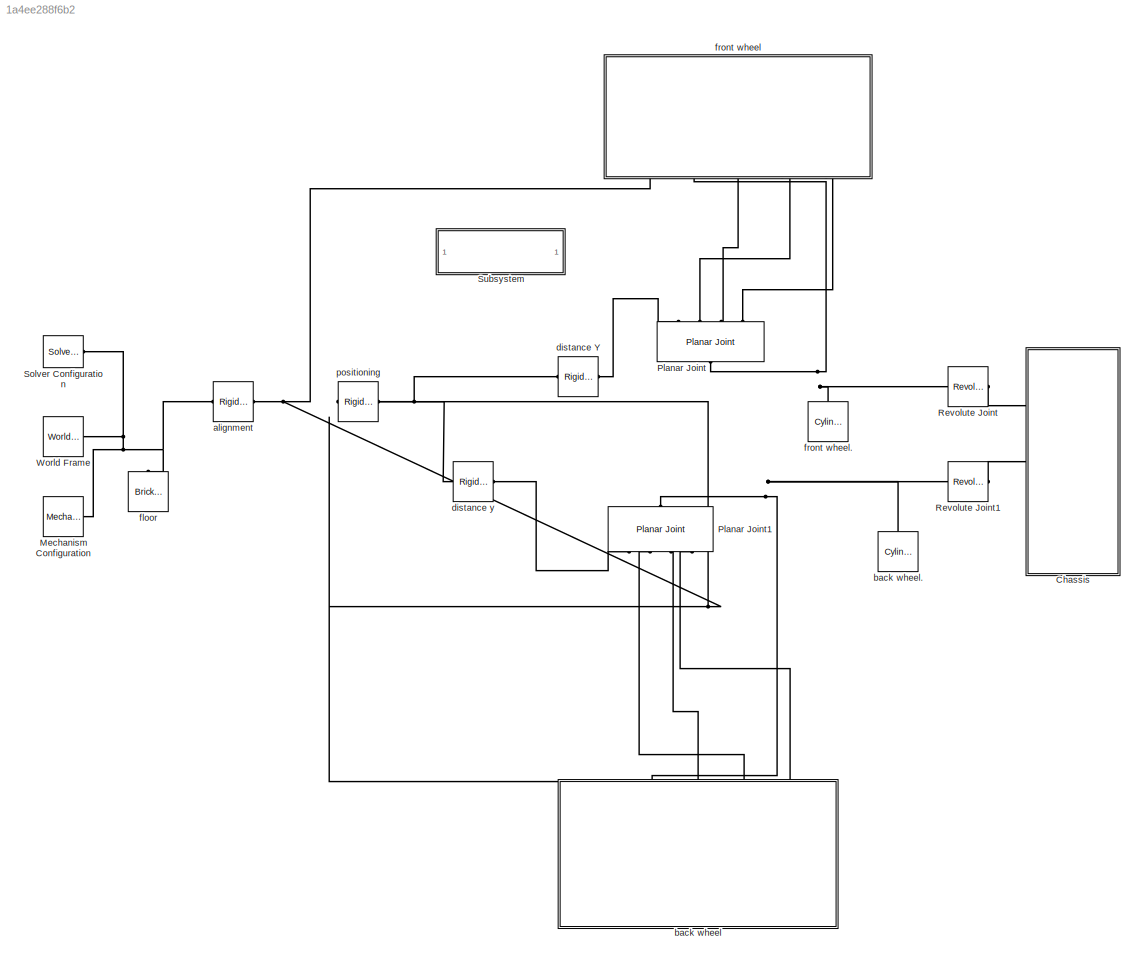
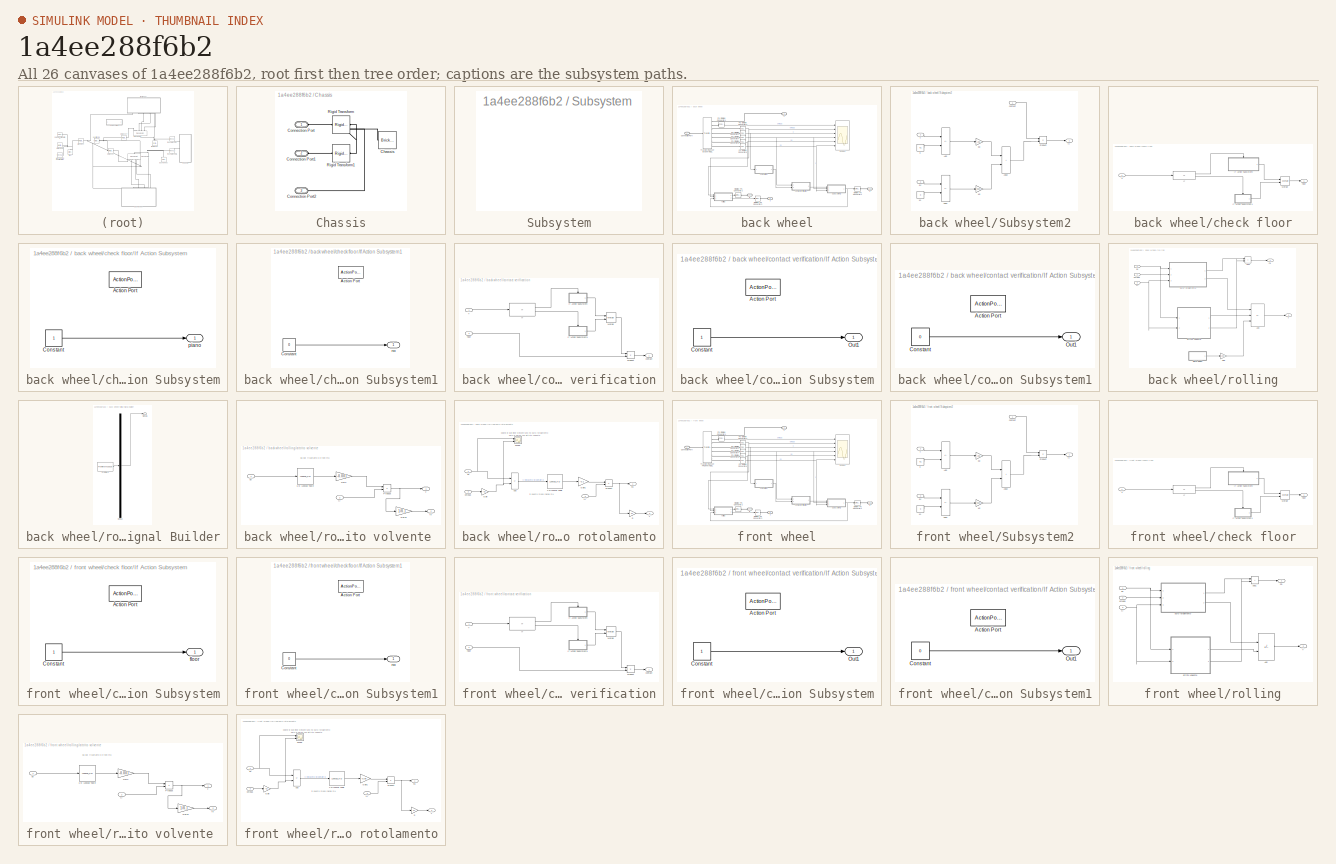
[diagram: thumbnail index - all 26 canvases of the model, root first then tree order]
MODEL slx_1a4ee288f6b2
KIND model
CONFIG AbsTol = auto
CONFIG EnableMultiTasking = on
CONFIG FixedStep = auto
CONFIG MaxStep = auto
CONFIG MinStep = auto
CONFIG RelTol = 1e-3
CONFIG SampleTimeConstraint = Unconstrained
CONFIG SolverName = VariableStepAuto
CONFIG StartTime = 0.0
CONFIG StopTime = 10.0
BLOCK [SubSystem] Chassis
  Ports = [0, 0, 0, 0, 0, 3]
  RequestExecContextInheritance = off
BLOCK [Reference] Chassis/Chassis  REF=sm_lib/Body Elements/Brick Solid
  NameLocation = top
  Ports = [0, 0, 0, 0, 0, 0, 1]
  SourceBlock = sm_lib/Body Elements/Brick Solid
  SourceProductBaseCode = MS
  SourceType = Brick Solid
BLOCK [PMIOPort] Chassis/Connection Port
  Side = Left
BLOCK [PMIOPort] Chassis/Connection Port1
  Port = 2
  Side = Left
BLOCK [PMIOPort] Chassis/Connection Port2
  Port = 3
  Side = Left
BLOCK [Reference] Chassis/Rigid Transform  REF=sm_lib/Frames and
Transforms/Rigid
Transform
  Ports = [0, 0, 0, 0, 0, 1, 1]
  SourceBlock = sm_lib/Frames and\nTransforms/Rigid\nTransform
  SourceProductBaseCode = MS
  SourceType = Rigid\nTransform
BLOCK [Reference] Chassis/Rigid Transform1  REF=sm_lib/Frames and
Transforms/Rigid
Transform
  Ports = [0, 0, 0, 0, 0, 1, 1]
  SourceBlock = sm_lib/Frames and\nTransforms/Rigid\nTransform
  SourceProductBaseCode = MS
  SourceType = Rigid\nTransform
BLOCK [Reference] Mechanism Configuration  REF=sm_lib/Utilities/Mechanism
Configuration
  Ports = [0, 0, 0, 0, 0, 0, 1]
  SourceBlock = sm_lib/Utilities/Mechanism\nConfiguration
  SourceProductBaseCode = MS
  SourceType = Mechanism\nConfiguration
BLOCK [Reference] Planar Joint  REF=sm_lib/Joints/Planar Joint
  NameLocation = left
  Ports = [0, 0, 0, 0, 0, 4, 1]
  SourceBlock = sm_lib/Joints/Planar Joint
  SourceProductBaseCode = MS
  SourceType = Planar Joint
BLOCK [Reference] Planar Joint1  REF=sm_lib/Joints/Planar Joint
  NameLocation = right
  Ports = [0, 0, 0, 0, 0, 4, 1]
  SourceBlock = sm_lib/Joints/Planar Joint
  SourceProductBaseCode = MS
  SourceType = Planar Joint
BLOCK [Reference] Revolute Joint  REF=sm_lib/Joints/Revolute Joint
  Ports = [0, 0, 0, 0, 0, 1, 1]
  SourceBlock = sm_lib/Joints/Revolute Joint
  SourceProductBaseCode = MS
  SourceType = Revolute Joint
BLOCK [Reference] Revolute Joint1  REF=sm_lib/Joints/Revolute Joint
  Ports = [0, 0, 0, 0, 0, 1, 1]
  SourceBlock = sm_lib/Joints/Revolute Joint
  SourceProductBaseCode = MS
  SourceType = Revolute Joint
BLOCK [Reference] Solver Configuration  REF=nesl_utility/Solver
Configuration
  Ports = [0, 0, 0, 0, 0, 0, 1]
  SourceBlock = nesl_utility/Solver\nConfiguration
  SourceProductBaseCode = SS
  SourceType = Solver\nConfiguration
BLOCK [SubSystem] Subsystem
  OpenFcn = open_system('sm_lib')
  Ports = []
  RequestExecContextInheritance = off
  ShowPortLabels = none
BLOCK [Reference] World Frame  REF=sm_lib/Frames and
Transforms/World Frame
  Ports = [0, 0, 0, 0, 0, 0, 1]
  SourceBlock = sm_lib/Frames and\nTransforms/World Frame
  SourceProductBaseCode = MS
  SourceType = World Frame
BLOCK [Reference] alignment  REF=sm_lib/Frames and
Transforms/Rigid
Transform
  Ports = [0, 0, 0, 0, 0, 1, 1]
  SourceBlock = sm_lib/Frames and\nTransforms/Rigid\nTransform
  SourceProductBaseCode = MS
  SourceType = Rigid\nTransform
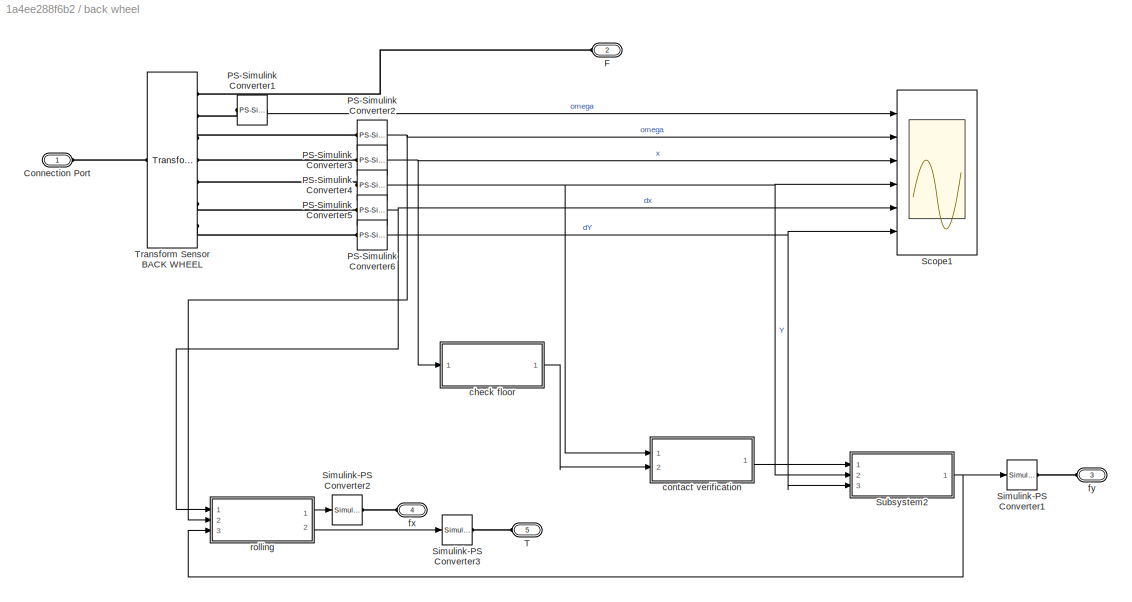
BLOCK [SubSystem] back wheel
  NameLocation = left
  Ports = [0, 0, 0, 0, 0, 5]
  RequestExecContextInheritance = off
BLOCK [Reference] back wheel.  REF=sm_lib/Body Elements/Cylindrical Solid
  NameLocation = right
  Ports = [0, 0, 0, 0, 0, 0, 1]
  SourceBlock = sm_lib/Body Elements/Cylindrical Solid
  SourceProductBaseCode = MS
  SourceType = Cylindrical Solid
BLOCK [PMIOPort] back wheel/Connection Port
  Side = Left
BLOCK [PMIOPort] back wheel/F
  Port = 2
  Side = Left
BLOCK [Reference] back wheel/PS-Simulink Converter1  REF=nesl_utility/PS-Simulink
Converter
  Ports = [0, 1, 0, 0, 0, 1]
  SourceBlock = nesl_utility/PS-Simulink\nConverter
  SourceProductBaseCode = SS
  SourceType = PS-Simulink\nConverter
BLOCK [Reference] back wheel/PS-Simulink Converter2  REF=nesl_utility/PS-Simulink
Converter
  Ports = [0, 1, 0, 0, 0, 1]
  SourceBlock = nesl_utility/PS-Simulink\nConverter
  SourceProductBaseCode = SS
  SourceType = PS-Simulink\nConverter
BLOCK [Reference] back wheel/PS-Simulink Converter3  REF=nesl_utility/PS-Simulink
Converter
  Ports = [0, 1, 0, 0, 0, 1]
  SourceBlock = nesl_utility/PS-Simulink\nConverter
  SourceProductBaseCode = SS
  SourceType = PS-Simulink\nConverter
BLOCK [Reference] back wheel/PS-Simulink Converter4  REF=nesl_utility/PS-Simulink
Converter
  Ports = [0, 1, 0, 0, 0, 1]
  SourceBlock = nesl_utility/PS-Simulink\nConverter
  SourceProductBaseCode = SS
  SourceType = PS-Simulink\nConverter
BLOCK [Reference] back wheel/PS-Simulink Converter5  REF=nesl_utility/PS-Simulink
Converter
  Ports = [0, 1, 0, 0, 0, 1]
  SourceBlock = nesl_utility/PS-Simulink\nConverter
  SourceProductBaseCode = SS
  SourceType = PS-Simulink\nConverter
BLOCK [Reference] back wheel/PS-Simulink Converter6  REF=nesl_utility/PS-Simulink
Converter
  Ports = [0, 1, 0, 0, 0, 1]
  SourceBlock = nesl_utility/PS-Simulink\nConverter
  SourceProductBaseCode = SS
  SourceType = PS-Simulink\nConverter
BLOCK [Scope] back wheel/Scope1
  Floating = off
  NumInputPorts = 6
  Ports = [6]
  ScopeSpecificationString = Simulink.scopes.TimeScopeBlockCfg('CurrentConfiguration', extmgr.ConfigurationSet(extmgr.Configuration('Core','General UI',true),extmgr.Configuration('Core','Source UI',true),extmgr.Configuration('Sources','WiredSimulink',true,'SampleTime','1e-3','DataLoggingVariableName','ScopeData1'),extmgr.Configuration('Visuals','Time Domain',true,'SerializedDisplays',{struct('MinYLimReal','-0.3927','MaxYLimRe...<+4755ch>
BLOCK [Reference] back wheel/Simulink-PS Converter1  REF=nesl_utility/Simulink-PS
Converter
  Ports = [1, 0, 0, 0, 0, 0, 1]
  SourceBlock = nesl_utility/Simulink-PS\nConverter
  SourceProductBaseCode = SS
  SourceType = Simulink-PS\nConverter
BLOCK [Reference] back wheel/Simulink-PS Converter2  REF=nesl_utility/Simulink-PS
Converter
  Ports = [1, 0, 0, 0, 0, 0, 1]
  SourceBlock = nesl_utility/Simulink-PS\nConverter
  SourceProductBaseCode = SS
  SourceType = Simulink-PS\nConverter
BLOCK [Reference] back wheel/Simulink-PS Converter3  REF=nesl_utility/Simulink-PS
Converter
  Ports = [1, 0, 0, 0, 0, 0, 1]
  SourceBlock = nesl_utility/Simulink-PS\nConverter
  SourceProductBaseCode = SS
  SourceType = Simulink-PS\nConverter
BLOCK [SubSystem] back wheel/Subsystem2
  Ports = [3, 1]
  RequestExecContextInheritance = off
BLOCK [Sum] back wheel/Subsystem2/Add
  IconShape = rectangular
  Inputs = -+
  Ports = [2, 1]
BLOCK [Sum] back wheel/Subsystem2/Add1
  IconShape = rectangular
  Inputs = -+
  Ports = [2, 1]
BLOCK [Sum] back wheel/Subsystem2/Add2
  IconShape = rectangular
  Ports = [2, 1]
BLOCK [Product] back wheel/Subsystem2/Product
  Ports = [2, 1]
BLOCK [Inport] back wheel/Subsystem2/Y
  Port = 2
BLOCK [Inport] back wheel/Subsystem2/contact
BLOCK [Inport] back wheel/Subsystem2/dY
  Port = 3
BLOCK [Outport] back wheel/Subsystem2/fy 
  VectorParamsAs1DForOutWhenUnconnected = off
BLOCK [Constant] back wheel/Subsystem2/k
  Value = 0.1
BLOCK [Constant] back wheel/Subsystem2/k1
  Value = 0
BLOCK [Gain] back wheel/Subsystem2/kd
  Gain = 0.8e2
BLOCK [Gain] back wheel/Subsystem2/kp
  Gain = 1e6
BLOCK [PMIOPort] back wheel/T
  Port = 5
  Side = Left
BLOCK [Reference] back wheel/Transform Sensor BACK WHEEL  REF=sm_lib/Frames and
Transforms/Transform
Sensor
  Ports = [0, 0, 0, 0, 0, 1, 7]
  SourceBlock = sm_lib/Frames and\nTransforms/Transform\nSensor
  SourceProductBaseCode = MS
  SourceType = Transform\nSensor
BLOCK [SubSystem] back wheel/check floor
  Ports = [1, 1]
  RequestExecContextInheritance = off
BLOCK [If] back wheel/check floor/If
  IfExpression = u1<1.5 & u1>-1.5
  Ports = [1, 2]
BLOCK [SubSystem] back wheel/check floor/If Action Subsystem
  Ports = [0, 1, 0, 0, 0, 0, 0, 1]
  RequestExecContextInheritance = off
  TreatAsAtomicUnit = on
BLOCK [ActionPort] back wheel/check floor/If Action Subsystem/Action Port
  ActionPortLabel = if(u1<1.5 & u1>-1.5)
BLOCK [Constant] back wheel/check floor/If Action Subsystem/Constant
BLOCK [Outport] back wheel/check floor/If Action Subsystem/piano
  VectorParamsAs1DForOutWhenUnconnected = off
BLOCK [SubSystem] back wheel/check floor/If Action Subsystem1
  Ports = [0, 1, 0, 0, 0, 0, 0, 1]
  RequestExecContextInheritance = off
  TreatAsAtomicUnit = on
BLOCK [ActionPort] back wheel/check floor/If Action Subsystem1/Action Port
  ActionPortLabel = else
BLOCK [Constant] back wheel/check floor/If Action Subsystem1/Constant
  Value = 0
BLOCK [Outport] back wheel/check floor/If Action Subsystem1/no
  VectorParamsAs1DForOutWhenUnconnected = off
BLOCK [Merge] back wheel/check floor/Merge
  Ports = [2, 1]
BLOCK [Outport] back wheel/check floor/floor
  VectorParamsAs1DForOutWhenUnconnected = off
BLOCK [Inport] back wheel/check floor/x
BLOCK [SubSystem] back wheel/contact verification
  Ports = [2, 1]
  RequestExecContextInheritance = off
BLOCK [If] back wheel/contact verification/If
  IfExpression = u1 <=0.1
  Ports = [1, 2]
BLOCK [SubSystem] back wheel/contact verification/If Action Subsystem
  Ports = [0, 1, 0, 0, 0, 0, 0, 1]
  RequestExecContextInheritance = off
  TreatAsAtomicUnit = on
BLOCK [ActionPort] back wheel/contact verification/If Action Subsystem/Action Port
  ActionPortLabel = if(u1 <=0.1)
BLOCK [Constant] back wheel/contact verification/If Action Subsystem/Constant
BLOCK [Outport] back wheel/contact verification/If Action Subsystem/Out1
  VectorParamsAs1DForOutWhenUnconnected = off
BLOCK [SubSystem] back wheel/contact verification/If Action Subsystem1
  Ports = [0, 1, 0, 0, 0, 0, 0, 1]
  RequestExecContextInheritance = off
  TreatAsAtomicUnit = on
BLOCK [ActionPort] back wheel/contact verification/If Action Subsystem1/Action Port
  ActionPortLabel = else
BLOCK [Constant] back wheel/contact verification/If Action Subsystem1/Constant
  Value = 0
BLOCK [Outport] back wheel/contact verification/If Action Subsystem1/Out1
  VectorParamsAs1DForOutWhenUnconnected = off
BLOCK [Merge] back wheel/contact verification/Merge
  Ports = [2, 1]
BLOCK [Product] back wheel/contact verification/Product
  Ports = [2, 1]
BLOCK [Inport] back wheel/contact verification/Y
BLOCK [Outport] back wheel/contact verification/contact
  VectorParamsAs1DForOutWhenUnconnected = off
BLOCK [Inport] back wheel/contact verification/floor
  Port = 2
BLOCK [PMIOPort] back wheel/fx
  Port = 4
  Side = Left
BLOCK [PMIOPort] back wheel/fy
  Port = 3
  Side = Left
BLOCK [SubSystem] back wheel/rolling
  Ports = [3, 2]
  RequestExecContextInheritance = off
BLOCK [Sum] back wheel/rolling/Add
  IconShape = rectangular
  Inputs = +-+
  Ports = [3, 1]
BLOCK [Sum] back wheel/rolling/Add1
  IconShape = rectangular
  Ports = [2, 1]
BLOCK [Outport] back wheel/rolling/Fa
  VectorParamsAs1DForOutWhenUnconnected = off
BLOCK [Gain] back wheel/rolling/Gain
  Gain = 1e-2
BLOCK [SubSystem] back wheel/rolling/Signal Builder
  ClipboardFcn = sigbuilder_block('clipboard');
  CloseFcn = sigbuilder_block('close');
  ContinueFcn = sigbuilder_block('continue');
  CopyFcn = sigbuilder_block('copy');
  DeleteFcn = sigbuilder_block('delete');
  LoadFcn = sigbuilder_block('load');
  MaskHideContents = on
  ModelCloseFcn = sigbuilder_block('modelClose');
  NameChangeFcn = sigbuilder_block('namechange');
  OpenFcn = sigbuilder_block('open',[319.2 116.4 550.8 400.2 ]);
  PauseFcn = sigbuilder_block('pause');
  Ports = [0, 1]
  PreSaveFcn = sigbuilder_block('preSave');
  RequestExecContextInheritance = off
  StartFcn = sigbuilder_block('start');
  StopFcn = sigbuilder_block('stop');
  Tag = STV Subsys
BLOCK [Demux] back wheel/rolling/Signal Builder/Demux
  DisplayOption = none
  Outputs = 1
  Ports = [1, 1]
  Tag = STV Demux
BLOCK [FromWorkspace] back wheel/rolling/Signal Builder/FromWs
  Tag = STV FromWs
  VariableName = tuvar
BLOCK [Outport] back wheel/rolling/Signal Builder/Signal 1
  Tag = STV Outport
  VectorParamsAs1DForOutWhenUnconnected = off
BLOCK [Outport] back wheel/rolling/T
  Port = 2
  VectorParamsAs1DForOutWhenUnconnected = off
BLOCK [SubSystem] back wheel/rolling/attrito volvente 
  Ports = [2, 2]
  RequestExecContextInheritance = off
BLOCK [Lookup_n-D] back wheel/rolling/attrito volvente /1-D Lookup Table
  BreakpointsForDimension1 = [-5:0.1:5]
  InputPortMap = u0
  InternalRulePriority = Speed
  NumberOfTableDimensions = 1
  Ports = [1, 1]
  RndMeth = Simplest
  Table = tanh([-5:0.1:5])
BLOCK [Gain] back wheel/rolling/attrito volvente /Gain
  Gain = -0.001
BLOCK [Gain] back wheel/rolling/attrito volvente /Gain1
  Gain = 1/0.1
BLOCK [Product] back wheel/rolling/attrito volvente /Product
  Ports = [2, 1]
BLOCK [Outport] back wheel/rolling/attrito volvente /T
  VectorParamsAs1DForOutWhenUnconnected = off
BLOCK [Inport] back wheel/rolling/attrito volvente /dx
BLOCK [Outport] back wheel/rolling/attrito volvente /fx
  Port = 2
  VectorParamsAs1DForOutWhenUnconnected = off
BLOCK [Inport] back wheel/rolling/attrito volvente /fy
  Port = 2
BLOCK [Inport] back wheel/rolling/dx
BLOCK [Inport] back wheel/rolling/fy
  Port = 3
BLOCK [Inport] back wheel/rolling/omega
  Port = 2
BLOCK [SubSystem] back wheel/rolling/puro rotolamento
  Ports = [3, 2]
  RequestExecContextInheritance = off
BLOCK [Lookup_n-D] back wheel/rolling/puro rotolamento/1-D Lookup Table
  BreakpointsForDimension1 = [-5:0.1:5]
  InputPortMap = u0
  InternalRulePriority = Speed
  NumberOfTableDimensions = 1
  Ports = [1, 1]
  RndMeth = Simplest
  Table = tanh([-5:0.1:5])
BLOCK [Sum] back wheel/rolling/puro rotolamento/Add
  IconShape = rectangular
  Inputs = +-
  Ports = [2, 1]
BLOCK [Outport] back wheel/rolling/puro rotolamento/Fa
  VectorParamsAs1DForOutWhenUnconnected = off
BLOCK [Gain] back wheel/rolling/puro rotolamento/Gain
  Gain = -0.1
BLOCK [Gain] back wheel/rolling/puro rotolamento/Gain1
  Gain = -0.1
BLOCK [Product] back wheel/rolling/puro rotolamento/Product
  Ports = [2, 1]
BLOCK [Gain] back wheel/rolling/puro rotolamento/R
  Gain = 0.1
BLOCK [Scope] back wheel/rolling/puro rotolamento/Scope
  Floating = off
  NumInputPorts = 2
  Ports = [2]
  ScopeSpecificationString = Simulink.scopes.TimeScopeBlockCfg('CurrentConfiguration', extmgr.ConfigurationSet(extmgr.Configuration('Core','General UI',true),extmgr.Configuration('Core','Source UI',true),extmgr.Configuration('Sources','WiredSimulink',true,'DataLoggingVariableName','ScopeData2'),extmgr.Configuration('Visuals','Time Domain',true,'SerializedDisplays',{struct('MinYLimReal','-0.0625','MaxYLimReal','0.5625','YLabel...<+1362ch>
BLOCK [Outport] back wheel/rolling/puro rotolamento/T
  Port = 2
  VectorParamsAs1DForOutWhenUnconnected = off
BLOCK [Inport] back wheel/rolling/puro rotolamento/dx
BLOCK [Inport] back wheel/rolling/puro rotolamento/fy
  Port = 3
BLOCK [Inport] back wheel/rolling/puro rotolamento/omega
  Port = 2
BLOCK [Reference] distance Y  REF=sm_lib/Frames and
Transforms/Rigid
Transform
  Ports = [0, 0, 0, 0, 0, 1, 1]
  SourceBlock = sm_lib/Frames and\nTransforms/Rigid\nTransform
  SourceProductBaseCode = MS
  SourceType = Rigid\nTransform
BLOCK [Reference] distance y  REF=sm_lib/Frames and
Transforms/Rigid
Transform
  Ports = [0, 0, 0, 0, 0, 1, 1]
  SourceBlock = sm_lib/Frames and\nTransforms/Rigid\nTransform
  SourceProductBaseCode = MS
  SourceType = Rigid\nTransform
BLOCK [Reference] floor  REF=sm_lib/Body Elements/Brick Solid
  NameLocation = right
  Ports = [0, 0, 0, 0, 0, 0, 1]
  SourceBlock = sm_lib/Body Elements/Brick Solid
  SourceProductBaseCode = MS
  SourceType = Brick Solid
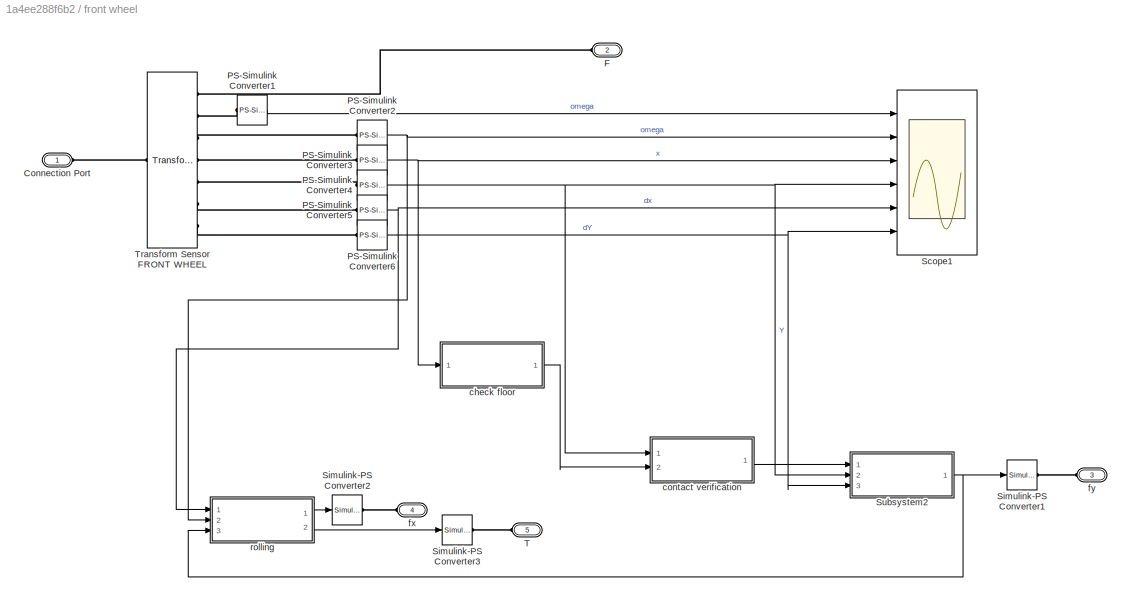
BLOCK [SubSystem] front wheel
  NameLocation = right
  Ports = [0, 0, 0, 0, 0, 5]
  RequestExecContextInheritance = off
BLOCK [Reference] front wheel.  REF=sm_lib/Body Elements/Cylindrical Solid
  NameLocation = right
  Ports = [0, 0, 0, 0, 0, 0, 1]
  SourceBlock = sm_lib/Body Elements/Cylindrical Solid
  SourceProductBaseCode = MS
  SourceType = Cylindrical Solid
BLOCK [PMIOPort] front wheel/Connection Port
  Side = Left
BLOCK [PMIOPort] front wheel/F
  Port = 2
  Side = Left
BLOCK [Reference] front wheel/PS-Simulink Converter1  REF=nesl_utility/PS-Simulink
Converter
  Ports = [0, 1, 0, 0, 0, 1]
  SourceBlock = nesl_utility/PS-Simulink\nConverter
  SourceProductBaseCode = SS
  SourceType = PS-Simulink\nConverter
BLOCK [Reference] front wheel/PS-Simulink Converter2  REF=nesl_utility/PS-Simulink
Converter
  Ports = [0, 1, 0, 0, 0, 1]
  SourceBlock = nesl_utility/PS-Simulink\nConverter
  SourceProductBaseCode = SS
  SourceType = PS-Simulink\nConverter
BLOCK [Reference] front wheel/PS-Simulink Converter3  REF=nesl_utility/PS-Simulink
Converter
  Ports = [0, 1, 0, 0, 0, 1]
  SourceBlock = nesl_utility/PS-Simulink\nConverter
  SourceProductBaseCode = SS
  SourceType = PS-Simulink\nConverter
BLOCK [Reference] front wheel/PS-Simulink Converter4  REF=nesl_utility/PS-Simulink
Converter
  Ports = [0, 1, 0, 0, 0, 1]
  SourceBlock = nesl_utility/PS-Simulink\nConverter
  SourceProductBaseCode = SS
  SourceType = PS-Simulink\nConverter
BLOCK [Reference] front wheel/PS-Simulink Converter5  REF=nesl_utility/PS-Simulink
Converter
  Ports = [0, 1, 0, 0, 0, 1]
  SourceBlock = nesl_utility/PS-Simulink\nConverter
  SourceProductBaseCode = SS
  SourceType = PS-Simulink\nConverter
BLOCK [Reference] front wheel/PS-Simulink Converter6  REF=nesl_utility/PS-Simulink
Converter
  Ports = [0, 1, 0, 0, 0, 1]
  SourceBlock = nesl_utility/PS-Simulink\nConverter
  SourceProductBaseCode = SS
  SourceType = PS-Simulink\nConverter
BLOCK [Scope] front wheel/Scope1
  Floating = off
  NumInputPorts = 6
  Ports = [6]
  ScopeSpecificationString = Simulink.scopes.TimeScopeBlockCfg('CurrentConfiguration', extmgr.ConfigurationSet(extmgr.Configuration('Core','General UI',true),extmgr.Configuration('Core','Source UI',true),extmgr.Configuration('Sources','WiredSimulink',true,'SampleTime','1e-3','DataLoggingVariableName','ScopeData1'),extmgr.Configuration('Visuals','Time Domain',true,'SerializedDisplays',{struct('MinYLimReal','-0.39269','MaxYLimR...<+4774ch>
BLOCK [Reference] front wheel/Simulink-PS Converter1  REF=nesl_utility/Simulink-PS
Converter
  Ports = [1, 0, 0, 0, 0, 0, 1]
  SourceBlock = nesl_utility/Simulink-PS\nConverter
  SourceProductBaseCode = SS
  SourceType = Simulink-PS\nConverter
BLOCK [Reference] front wheel/Simulink-PS Converter2  REF=nesl_utility/Simulink-PS
Converter
  Ports = [1, 0, 0, 0, 0, 0, 1]
  SourceBlock = nesl_utility/Simulink-PS\nConverter
  SourceProductBaseCode = SS
  SourceType = Simulink-PS\nConverter
BLOCK [Reference] front wheel/Simulink-PS Converter3  REF=nesl_utility/Simulink-PS
Converter
  Ports = [1, 0, 0, 0, 0, 0, 1]
  SourceBlock = nesl_utility/Simulink-PS\nConverter
  SourceProductBaseCode = SS
  SourceType = Simulink-PS\nConverter
BLOCK [SubSystem] front wheel/Subsystem2
  Ports = [3, 1]
  RequestExecContextInheritance = off
BLOCK [Sum] front wheel/Subsystem2/Add
  IconShape = rectangular
  Inputs = -+
  Ports = [2, 1]
BLOCK [Sum] front wheel/Subsystem2/Add1
  IconShape = rectangular
  Inputs = -+
  Ports = [2, 1]
BLOCK [Sum] front wheel/Subsystem2/Add2
  IconShape = rectangular
  Ports = [2, 1]
BLOCK [Product] front wheel/Subsystem2/Product
  Ports = [2, 1]
BLOCK [Inport] front wheel/Subsystem2/Y
  Port = 2
BLOCK [Inport] front wheel/Subsystem2/contact
BLOCK [Inport] front wheel/Subsystem2/dY
  Port = 3
BLOCK [Outport] front wheel/Subsystem2/fy 
  VectorParamsAs1DForOutWhenUnconnected = off
BLOCK [Constant] front wheel/Subsystem2/k
  Value = 0.1
BLOCK [Constant] front wheel/Subsystem2/k1
  Value = 0
BLOCK [Gain] front wheel/Subsystem2/kd
  Gain = 0.8e2
BLOCK [Gain] front wheel/Subsystem2/kp
  Gain = 1e6
BLOCK [PMIOPort] front wheel/T
  Port = 5
  Side = Left
BLOCK [Reference] front wheel/Transform Sensor FRONT WHEEL  REF=sm_lib/Frames and
Transforms/Transform
Sensor
  Ports = [0, 0, 0, 0, 0, 1, 7]
  SourceBlock = sm_lib/Frames and\nTransforms/Transform\nSensor
  SourceProductBaseCode = MS
  SourceType = Transform\nSensor
BLOCK [SubSystem] front wheel/check floor
  Ports = [1, 1]
  RequestExecContextInheritance = off
BLOCK [If] front wheel/check floor/If
  IfExpression = u1<1.5 & u1>-1.5
  Ports = [1, 2]
BLOCK [SubSystem] front wheel/check floor/If Action Subsystem
  Ports = [0, 1, 0, 0, 0, 0, 0, 1]
  RequestExecContextInheritance = off
  TreatAsAtomicUnit = on
BLOCK [ActionPort] front wheel/check floor/If Action Subsystem/Action Port
  ActionPortLabel = if(u1<1.5 & u1>-1.5)
BLOCK [Constant] front wheel/check floor/If Action Subsystem/Constant
BLOCK [Outport] front wheel/check floor/If Action Subsystem/floor
  VectorParamsAs1DForOutWhenUnconnected = off
BLOCK [SubSystem] front wheel/check floor/If Action Subsystem1
  Ports = [0, 1, 0, 0, 0, 0, 0, 1]
  RequestExecContextInheritance = off
  TreatAsAtomicUnit = on
BLOCK [ActionPort] front wheel/check floor/If Action Subsystem1/Action Port
  ActionPortLabel = else
BLOCK [Constant] front wheel/check floor/If Action Subsystem1/Constant
  Value = 0
BLOCK [Outport] front wheel/check floor/If Action Subsystem1/no
  VectorParamsAs1DForOutWhenUnconnected = off
BLOCK [Merge] front wheel/check floor/Merge
  Ports = [2, 1]
BLOCK [Outport] front wheel/check floor/floor
  VectorParamsAs1DForOutWhenUnconnected = off
BLOCK [Inport] front wheel/check floor/x
BLOCK [SubSystem] front wheel/contact verification
  Ports = [2, 1]
  RequestExecContextInheritance = off
BLOCK [If] front wheel/contact verification/If
  IfExpression = u1 <=0.1
  Ports = [1, 2]
BLOCK [SubSystem] front wheel/contact verification/If Action Subsystem
  Ports = [0, 1, 0, 0, 0, 0, 0, 1]
  RequestExecContextInheritance = off
  TreatAsAtomicUnit = on
BLOCK [ActionPort] front wheel/contact verification/If Action Subsystem/Action Port
  ActionPortLabel = if(u1 <=0.1)
BLOCK [Constant] front wheel/contact verification/If Action Subsystem/Constant
BLOCK [Outport] front wheel/contact verification/If Action Subsystem/Out1
  VectorParamsAs1DForOutWhenUnconnected = off
BLOCK [SubSystem] front wheel/contact verification/If Action Subsystem1
  Ports = [0, 1, 0, 0, 0, 0, 0, 1]
  RequestExecContextInheritance = off
  TreatAsAtomicUnit = on
BLOCK [ActionPort] front wheel/contact verification/If Action Subsystem1/Action Port
  ActionPortLabel = else
BLOCK [Constant] front wheel/contact verification/If Action Subsystem1/Constant
  Value = 0
BLOCK [Outport] front wheel/contact verification/If Action Subsystem1/Out1
  VectorParamsAs1DForOutWhenUnconnected = off
BLOCK [Merge] front wheel/contact verification/Merge
  Ports = [2, 1]
BLOCK [Product] front wheel/contact verification/Product
  Ports = [2, 1]
BLOCK [Inport] front wheel/contact verification/Y
BLOCK [Outport] front wheel/contact verification/contact
  VectorParamsAs1DForOutWhenUnconnected = off
BLOCK [Inport] front wheel/contact verification/floor
  Port = 2
BLOCK [PMIOPort] front wheel/fx
  Port = 4
  Side = Left
BLOCK [PMIOPort] front wheel/fy
  Port = 3
  Side = Left
BLOCK [SubSystem] front wheel/rolling
  Ports = [3, 2]
  RequestExecContextInheritance = off
BLOCK [Sum] front wheel/rolling/Add
  IconShape = rectangular
  Inputs = +-
  Ports = [2, 1]
BLOCK [Sum] front wheel/rolling/Add1
  IconShape = rectangular
  Ports = [2, 1]
BLOCK [Outport] front wheel/rolling/Fa
  VectorParamsAs1DForOutWhenUnconnected = off
BLOCK [Outport] front wheel/rolling/T
  Port = 2
  VectorParamsAs1DForOutWhenUnconnected = off
BLOCK [SubSystem] front wheel/rolling/attrito volvente 
  Ports = [2, 2]
  RequestExecContextInheritance = off
BLOCK [Lookup_n-D] front wheel/rolling/attrito volvente /1-D Lookup Table
  BreakpointsForDimension1 = [-5:0.1:5]
  InputPortMap = u0
  InternalRulePriority = Speed
  NumberOfTableDimensions = 1
  Ports = [1, 1]
  RndMeth = Simplest
  Table = tanh([-5:0.1:5])
BLOCK [Gain] front wheel/rolling/attrito volvente /Gain
  Gain = -0.001
BLOCK [Gain] front wheel/rolling/attrito volvente /Gain1
  Gain = 1/0.1
BLOCK [Product] front wheel/rolling/attrito volvente /Product
  Ports = [2, 1]
BLOCK [Outport] front wheel/rolling/attrito volvente /T
  VectorParamsAs1DForOutWhenUnconnected = off
BLOCK [Inport] front wheel/rolling/attrito volvente /dx
BLOCK [Outport] front wheel/rolling/attrito volvente /fx
  Port = 2
  VectorParamsAs1DForOutWhenUnconnected = off
BLOCK [Inport] front wheel/rolling/attrito volvente /fy
  Port = 2
BLOCK [Inport] front wheel/rolling/dx
BLOCK [Inport] front wheel/rolling/fy
  Port = 3
BLOCK [Inport] front wheel/rolling/omega
  Port = 2
BLOCK [SubSystem] front wheel/rolling/puro rotolamento
  Ports = [3, 2]
  RequestExecContextInheritance = off
BLOCK [Lookup_n-D] front wheel/rolling/puro rotolamento/1-D Lookup Table
  BreakpointsForDimension1 = [-5:0.1:5]
  InputPortMap = u0
  InternalRulePriority = Speed
  NumberOfTableDimensions = 1
  Ports = [1, 1]
  RndMeth = Simplest
  Table = tanh([-5:0.1:5])
BLOCK [Sum] front wheel/rolling/puro rotolamento/Add
  IconShape = rectangular
  Inputs = +-
  Ports = [2, 1]
BLOCK [Outport] front wheel/rolling/puro rotolamento/Fa
  VectorParamsAs1DForOutWhenUnconnected = off
BLOCK [Gain] front wheel/rolling/puro rotolamento/Gain
  Gain = -0.1
BLOCK [Gain] front wheel/rolling/puro rotolamento/Gain1
  Gain = -0.05
BLOCK [Product] front wheel/rolling/puro rotolamento/Product
  Ports = [2, 1]
BLOCK [Gain] front wheel/rolling/puro rotolamento/R
  Gain = 0.1
BLOCK [Scope] front wheel/rolling/puro rotolamento/Scope
  Floating = off
  NumInputPorts = 2
  Ports = [2]
  ScopeSpecificationString = Simulink.scopes.TimeScopeBlockCfg('CurrentConfiguration', extmgr.ConfigurationSet(extmgr.Configuration('Core','General UI',true),extmgr.Configuration('Core','Source UI',true),extmgr.Configuration('Sources','WiredSimulink',true,'DataLoggingVariableName','ScopeData2'),extmgr.Configuration('Visuals','Time Domain',true,'SerializedDisplays',{struct('MinYLimReal','-0.0625','MaxYLimReal','0.5625','YLabel...<+1362ch>
BLOCK [Outport] front wheel/rolling/puro rotolamento/T
  Port = 2
  VectorParamsAs1DForOutWhenUnconnected = off
BLOCK [Inport] front wheel/rolling/puro rotolamento/dx
BLOCK [Inport] front wheel/rolling/puro rotolamento/fy
  Port = 3
BLOCK [Inport] front wheel/rolling/puro rotolamento/omega
  Port = 2
BLOCK [Reference] positioning  REF=sm_lib/Frames and
Transforms/Rigid
Transform
  Ports = [0, 0, 0, 0, 0, 1, 1]
  SourceBlock = sm_lib/Frames and\nTransforms/Rigid\nTransform
  SourceProductBaseCode = MS
  SourceType = Rigid\nTransform
ANNOTATION back wheel/rolling/attrito volvente : da qui ricaviamo b e non mu
ANNOTATION back wheel/rolling/puro rotolamento: poichè le due linee si incontrano ho puro rotolamento però lo perdo con l'attrito volvente
ANNOTATION back wheel/rolling/puro rotolamento: in questo modo calcolo mu
ANNOTATION front wheel/rolling/attrito volvente : da qui ricaviamo b e non mu
ANNOTATION front wheel/rolling/puro rotolamento: poichè le due linee si incontrano ho puro rotolamento però lo perdo con l'attrito volvente
ANNOTATION front wheel/rolling/puro rotolamento: in questo modo calcolo mu
LINE back wheel/PS-Simulink Converter1:1 -> back wheel/Scope1:1
NET back wheel/PS-Simulink Converter2:1 -> back wheel/Scope1:2, back wheel/rolling:2
NET back wheel/PS-Simulink Converter3:1 -> back wheel/Scope1:3, back wheel/check floor:1
NET back wheel/PS-Simulink Converter4:1 -> back wheel/Scope1:4, back wheel/Subsystem2:2, back wheel/contact verification:1
NET back wheel/PS-Simulink Converter5:1 -> back wheel/Scope1:5, back wheel/rolling:1
NET back wheel/PS-Simulink Converter6:1 -> back wheel/Scope1:6, back wheel/Subsystem2:3
LINE back wheel/Subsystem2/Add1:1 -> back wheel/Subsystem2/kd:1
LINE back wheel/Subsystem2/Add2:1 -> back wheel/Subsystem2/Product:2
LINE back wheel/Subsystem2/Add:1 -> back wheel/Subsystem2/kp:1
LINE back wheel/Subsystem2/Product:1 -> back wheel/Subsystem2/fy :1
LINE back wheel/Subsystem2/Y:1 -> back wheel/Subsystem2/Add:1
LINE back wheel/Subsystem2/contact:1 -> back wheel/Subsystem2/Product:1
LINE back wheel/Subsystem2/dY:1 -> back wheel/Subsystem2/Add1:1
LINE back wheel/Subsystem2/k1:1 -> back wheel/Subsystem2/Add1:2
LINE back wheel/Subsystem2/k:1 -> back wheel/Subsystem2/Add:2
LINE back wheel/Subsystem2/kd:1 -> back wheel/Subsystem2/Add2:2
LINE back wheel/Subsystem2/kp:1 -> back wheel/Subsystem2/Add2:1
NET back wheel/Subsystem2:1 -> back wheel/Simulink-PS Converter1:1, back wheel/rolling:3
LINE back wheel/check floor/If Action Subsystem/Constant:1 -> back wheel/check floor/If Action Subsystem/piano:1
LINE back wheel/check floor/If Action Subsystem1/Constant:1 -> back wheel/check floor/If Action Subsystem1/no:1
LINE back wheel/check floor/If Action Subsystem1:1 -> back wheel/check floor/Merge:2
LINE back wheel/check floor/If Action Subsystem:1 -> back wheel/check floor/Merge:1
LINE back wheel/check floor/If:1 -> back wheel/check floor/If Action Subsystem:ifaction
LINE back wheel/check floor/If:2 -> back wheel/check floor/If Action Subsystem1:ifaction
LINE back wheel/check floor/Merge:1 -> back wheel/check floor/floor:1
LINE back wheel/check floor/x:1 -> back wheel/check floor/If:1
LINE back wheel/check floor:1 -> back wheel/contact verification:2
LINE back wheel/contact verification/If Action Subsystem/Constant:1 -> back wheel/contact verification/If Action Subsystem/Out1:1
LINE back wheel/contact verification/If Action Subsystem1/Constant:1 -> back wheel/contact verification/If Action Subsystem1/Out1:1
LINE back wheel/contact verification/If Action Subsystem1:1 -> back wheel/contact verification/Merge:2
LINE back wheel/contact verification/If Action Subsystem:1 -> back wheel/contact verification/Merge:1
LINE back wheel/contact verification/If:1 -> back wheel/contact verification/If Action Subsystem:ifaction
LINE back wheel/contact verification/If:2 -> back wheel/contact verification/If Action Subsystem1:ifaction
LINE back wheel/contact verification/Merge:1 -> back wheel/contact verification/Product:1
LINE back wheel/contact verification/Product:1 -> back wheel/contact verification/contact:1
LINE back wheel/contact verification/Y:1 -> back wheel/contact verification/If:1
LINE back wheel/contact verification/floor:1 -> back wheel/contact verification/Product:2
LINE back wheel/contact verification:1 -> back wheel/Subsystem2:1
LINE back wheel/rolling/Add1:1 -> back wheel/rolling/Fa:1
LINE back wheel/rolling/Add:1 -> back wheel/rolling/T:1
LINE back wheel/rolling/Gain:1 -> back wheel/rolling/Add:3
LINE back wheel/rolling/Signal Builder:1 -> back wheel/rolling/Gain:1
LINE back wheel/rolling/attrito volvente /1-D Lookup Table:1 -> back wheel/rolling/attrito volvente /Gain:1
LINE back wheel/rolling/attrito volvente /Gain1:1 -> back wheel/rolling/attrito volvente /fx:1
LINE back wheel/rolling/attrito volvente /Gain:1 -> back wheel/rolling/attrito volvente /Product:1
NET back wheel/rolling/attrito volvente /Product:1 -> back wheel/rolling/attrito volvente /Gain1:1, back wheel/rolling/attrito volvente /T:1
LINE back wheel/rolling/attrito volvente /dx:1 -> back wheel/rolling/attrito volvente /1-D Lookup Table:1
LINE back wheel/rolling/attrito volvente /fy:1 -> back wheel/rolling/attrito volvente /Product:2
LINE back wheel/rolling/attrito volvente :1 -> back wheel/rolling/Add:2
LINE back wheel/rolling/attrito volvente :2 -> back wheel/rolling/Add1:2
NET back wheel/rolling/dx:1 -> back wheel/rolling/attrito volvente :1, back wheel/rolling/puro rotolamento:1
NET back wheel/rolling/fy:1 -> back wheel/rolling/attrito volvente :2, back wheel/rolling/puro rotolamento:3
LINE back wheel/rolling/omega:1 -> back wheel/rolling/puro rotolamento:2
LINE back wheel/rolling/puro rotolamento/1-D Lookup Table:1 -> back wheel/rolling/puro rotolamento/Gain1:1
LINE back wheel/rolling/puro rotolamento/Add:1 -> back wheel/rolling/puro rotolamento/1-D Lookup Table:1
LINE back wheel/rolling/puro rotolamento/Gain1:1 -> back wheel/rolling/puro rotolamento/Product:1
NET back wheel/rolling/puro rotolamento/Gain:1 -> back wheel/rolling/puro rotolamento/Add:2, back wheel/rolling/puro rotolamento/Scope:2
NET back wheel/rolling/puro rotolamento/Product:1 -> back wheel/rolling/puro rotolamento/Fa:1, back wheel/rolling/puro rotolamento/R:1
LINE back wheel/rolling/puro rotolamento/R:1 -> back wheel/rolling/puro rotolamento/T:1
NET back wheel/rolling/puro rotolamento/dx:1 -> back wheel/rolling/puro rotolamento/Add:1, back wheel/rolling/puro rotolamento/Scope:1
LINE back wheel/rolling/puro rotolamento/fy:1 -> back wheel/rolling/puro rotolamento/Product:2
LINE back wheel/rolling/puro rotolamento/omega:1 -> back wheel/rolling/puro rotolamento/Gain:1
LINE back wheel/rolling/puro rotolamento:1 -> back wheel/rolling/Add1:1
LINE back wheel/rolling/puro rotolamento:2 -> back wheel/rolling/Add:1
LINE back wheel/rolling:1 -> back wheel/Simulink-PS Converter2:1
LINE back wheel/rolling:2 -> back wheel/Simulink-PS Converter3:1
LINE front wheel/PS-Simulink Converter1:1 -> front wheel/Scope1:1
NET front wheel/PS-Simulink Converter2:1 -> front wheel/Scope1:2, front wheel/rolling:2
NET front wheel/PS-Simulink Converter3:1 -> front wheel/Scope1:3, front wheel/check floor:1
NET front wheel/PS-Simulink Converter4:1 -> front wheel/Scope1:4, front wheel/Subsystem2:2, front wheel/contact verification:1
NET front wheel/PS-Simulink Converter5:1 -> front wheel/Scope1:5, front wheel/rolling:1
NET front wheel/PS-Simulink Converter6:1 -> front wheel/Scope1:6, front wheel/Subsystem2:3
LINE front wheel/Subsystem2/Add1:1 -> front wheel/Subsystem2/kd:1
LINE front wheel/Subsystem2/Add2:1 -> front wheel/Subsystem2/Product:2
LINE front wheel/Subsystem2/Add:1 -> front wheel/Subsystem2/kp:1
LINE front wheel/Subsystem2/Product:1 -> front wheel/Subsystem2/fy :1
LINE front wheel/Subsystem2/Y:1 -> front wheel/Subsystem2/Add:1
LINE front wheel/Subsystem2/contact:1 -> front wheel/Subsystem2/Product:1
LINE front wheel/Subsystem2/dY:1 -> front wheel/Subsystem2/Add1:1
LINE front wheel/Subsystem2/k1:1 -> front wheel/Subsystem2/Add1:2
LINE front wheel/Subsystem2/k:1 -> front wheel/Subsystem2/Add:2
LINE front wheel/Subsystem2/kd:1 -> front wheel/Subsystem2/Add2:2
LINE front wheel/Subsystem2/kp:1 -> front wheel/Subsystem2/Add2:1
NET front wheel/Subsystem2:1 -> front wheel/Simulink-PS Converter1:1, front wheel/rolling:3
LINE front wheel/check floor/If Action Subsystem/Constant:1 -> front wheel/check floor/If Action Subsystem/floor:1
LINE front wheel/check floor/If Action Subsystem1/Constant:1 -> front wheel/check floor/If Action Subsystem1/no:1
LINE front wheel/check floor/If Action Subsystem1:1 -> front wheel/check floor/Merge:2
LINE front wheel/check floor/If Action Subsystem:1 -> front wheel/check floor/Merge:1
LINE front wheel/check floor/If:1 -> front wheel/check floor/If Action Subsystem:ifaction
LINE front wheel/check floor/If:2 -> front wheel/check floor/If Action Subsystem1:ifaction
LINE front wheel/check floor/Merge:1 -> front wheel/check floor/floor:1
LINE front wheel/check floor/x:1 -> front wheel/check floor/If:1
LINE front wheel/check floor:1 -> front wheel/contact verification:2
LINE front wheel/contact verification/If Action Subsystem/Constant:1 -> front wheel/contact verification/If Action Subsystem/Out1:1
LINE front wheel/contact verification/If Action Subsystem1/Constant:1 -> front wheel/contact verification/If Action Subsystem1/Out1:1
LINE front wheel/contact verification/If Action Subsystem1:1 -> front wheel/contact verification/Merge:2
LINE front wheel/contact verification/If Action Subsystem:1 -> front wheel/contact verification/Merge:1
LINE front wheel/contact verification/If:1 -> front wheel/contact verification/If Action Subsystem:ifaction
LINE front wheel/contact verification/If:2 -> front wheel/contact verification/If Action Subsystem1:ifaction
LINE front wheel/contact verification/Merge:1 -> front wheel/contact verification/Product:1
LINE front wheel/contact verification/Product:1 -> front wheel/contact verification/contact:1
LINE front wheel/contact verification/Y:1 -> front wheel/contact verification/If:1
LINE front wheel/contact verification/floor:1 -> front wheel/contact verification/Product:2
LINE front wheel/contact verification:1 -> front wheel/Subsystem2:1
LINE front wheel/rolling/Add1:1 -> front wheel/rolling/Fa:1
LINE front wheel/rolling/Add:1 -> front wheel/rolling/T:1
LINE front wheel/rolling/attrito volvente /1-D Lookup Table:1 -> front wheel/rolling/attrito volvente /Gain:1
LINE front wheel/rolling/attrito volvente /Gain1:1 -> front wheel/rolling/attrito volvente /fx:1
LINE front wheel/rolling/attrito volvente /Gain:1 -> front wheel/rolling/attrito volvente /Product:1
NET front wheel/rolling/attrito volvente /Product:1 -> front wheel/rolling/attrito volvente /Gain1:1, front wheel/rolling/attrito volvente /T:1
LINE front wheel/rolling/attrito volvente /dx:1 -> front wheel/rolling/attrito volvente /1-D Lookup Table:1
LINE front wheel/rolling/attrito volvente /fy:1 -> front wheel/rolling/attrito volvente /Product:2
LINE front wheel/rolling/attrito volvente :1 -> front wheel/rolling/Add:2
LINE front wheel/rolling/attrito volvente :2 -> front wheel/rolling/Add1:2
NET front wheel/rolling/dx:1 -> front wheel/rolling/attrito volvente :1, front wheel/rolling/puro rotolamento:1
NET front wheel/rolling/fy:1 -> front wheel/rolling/attrito volvente :2, front wheel/rolling/puro rotolamento:3
LINE front wheel/rolling/omega:1 -> front wheel/rolling/puro rotolamento:2
LINE front wheel/rolling/puro rotolamento/1-D Lookup Table:1 -> front wheel/rolling/puro rotolamento/Gain1:1
LINE front wheel/rolling/puro rotolamento/Add:1 -> front wheel/rolling/puro rotolamento/1-D Lookup Table:1
LINE front wheel/rolling/puro rotolamento/Gain1:1 -> front wheel/rolling/puro rotolamento/Product:1
NET front wheel/rolling/puro rotolamento/Gain:1 -> front wheel/rolling/puro rotolamento/Add:2, front wheel/rolling/puro rotolamento/Scope:2
NET front wheel/rolling/puro rotolamento/Product:1 -> front wheel/rolling/puro rotolamento/Fa:1, front wheel/rolling/puro rotolamento/R:1
LINE front wheel/rolling/puro rotolamento/R:1 -> front wheel/rolling/puro rotolamento/T:1
NET front wheel/rolling/puro rotolamento/dx:1 -> front wheel/rolling/puro rotolamento/Add:1, front wheel/rolling/puro rotolamento/Scope:1
LINE front wheel/rolling/puro rotolamento/fy:1 -> front wheel/rolling/puro rotolamento/Product:2
LINE front wheel/rolling/puro rotolamento/omega:1 -> front wheel/rolling/puro rotolamento/Gain:1
LINE front wheel/rolling/puro rotolamento:1 -> front wheel/rolling/Add1:1
LINE front wheel/rolling/puro rotolamento:2 -> front wheel/rolling/Add:1
LINE front wheel/rolling:1 -> front wheel/Simulink-PS Converter2:1
LINE front wheel/rolling:2 -> front wheel/Simulink-PS Converter3:1
PNET net1: Chassis/Chassis:RConn1 -- Chassis/Connection Port2:RConn1 -- Chassis/Rigid Transform1:RConn1 -- Chassis/Rigid Transform:RConn1
PLINE Chassis/Connection Port1:RConn1 -- Chassis/Rigid Transform1:LConn1
PLINE Chassis/Connection Port:RConn1 -- Chassis/Rigid Transform:LConn1
PLINE Chassis:LConn1 -- Revolute Joint:RConn1
PLINE Chassis:LConn2 -- Revolute Joint1:RConn1
PNET net2: Mechanism Configuration:RConn1 -- Solver Configuration:RConn1 -- World Frame:RConn1 -- alignment:LConn1 -- floor:RConn1
PLINE Planar Joint1:LConn1 -- distance y:RConn1
PLINE Planar Joint1:LConn2 -- back wheel:LConn4
PLINE Planar Joint1:LConn3 -- back wheel:LConn3
PLINE Planar Joint1:LConn4 -- back wheel:LConn5
PNET net3: Planar Joint1:RConn1 -- Revolute Joint1:LConn1 -- back wheel.:RConn1 -- back wheel:LConn2
PLINE Planar Joint:LConn1 -- distance Y:RConn1
PLINE Planar Joint:LConn2 -- front wheel:LConn4
PLINE Planar Joint:LConn3 -- front wheel:LConn3
PLINE Planar Joint:LConn4 -- front wheel:LConn5
PNET net4: Planar Joint:RConn1 -- Revolute Joint:LConn1 -- front wheel.:RConn1 -- front wheel:LConn2
PNET net5: alignment:RConn1 -- back wheel:LConn1 -- front wheel:LConn1 -- positioning:LConn1
PLINE back wheel/Connection Port:RConn1 -- back wheel/Transform Sensor BACK WHEEL:LConn1
PLINE back wheel/F:RConn1 -- back wheel/Transform Sensor BACK WHEEL:RConn1
PLINE back wheel/PS-Simulink Converter1:LConn1 -- back wheel/Transform Sensor BACK WHEEL:RConn2
PLINE back wheel/PS-Simulink Converter2:LConn1 -- back wheel/Transform Sensor BACK WHEEL:RConn3
PLINE back wheel/PS-Simulink Converter3:LConn1 -- back wheel/Transform Sensor BACK WHEEL:RConn4
PLINE back wheel/PS-Simulink Converter4:LConn1 -- back wheel/Transform Sensor BACK WHEEL:RConn5
PLINE back wheel/PS-Simulink Converter5:LConn1 -- back wheel/Transform Sensor BACK WHEEL:RConn6
PLINE back wheel/PS-Simulink Converter6:LConn1 -- back wheel/Transform Sensor BACK WHEEL:RConn7
PLINE back wheel/Simulink-PS Converter1:RConn1 -- back wheel/fy:RConn1
PLINE back wheel/Simulink-PS Converter2:RConn1 -- back wheel/fx:RConn1
PLINE back wheel/Simulink-PS Converter3:RConn1 -- back wheel/T:RConn1
PNET net6: distance Y:LConn1 -- distance y:LConn1 -- positioning:RConn1
PLINE front wheel/Connection Port:RConn1 -- front wheel/Transform Sensor FRONT WHEEL:LConn1
PLINE front wheel/F:RConn1 -- front wheel/Transform Sensor FRONT WHEEL:RConn1
PLINE front wheel/PS-Simulink Converter1:LConn1 -- front wheel/Transform Sensor FRONT WHEEL:RConn2
PLINE front wheel/PS-Simulink Converter2:LConn1 -- front wheel/Transform Sensor FRONT WHEEL:RConn3
PLINE front wheel/PS-Simulink Converter3:LConn1 -- front wheel/Transform Sensor FRONT WHEEL:RConn4
PLINE front wheel/PS-Simulink Converter4:LConn1 -- front wheel/Transform Sensor FRONT WHEEL:RConn5
PLINE front wheel/PS-Simulink Converter5:LConn1 -- front wheel/Transform Sensor FRONT WHEEL:RConn6
PLINE front wheel/PS-Simulink Converter6:LConn1 -- front wheel/Transform Sensor FRONT WHEEL:RConn7
PLINE front wheel/Simulink-PS Converter1:RConn1 -- front wheel/fy:RConn1
PLINE front wheel/Simulink-PS Converter2:RConn1 -- front wheel/fx:RConn1
PLINE front wheel/Simulink-PS Converter3:RConn1 -- front wheel/T:RConn1
note: NET lines group one-source signal fan-out (src -> all destinations, sorted); 1:1 wires keep LINE; PNET lines group multi-terminal physical nets as a canonical sorted terminal list (undirected conserving connections); 2-terminal nets keep the pairwise PLINE form
